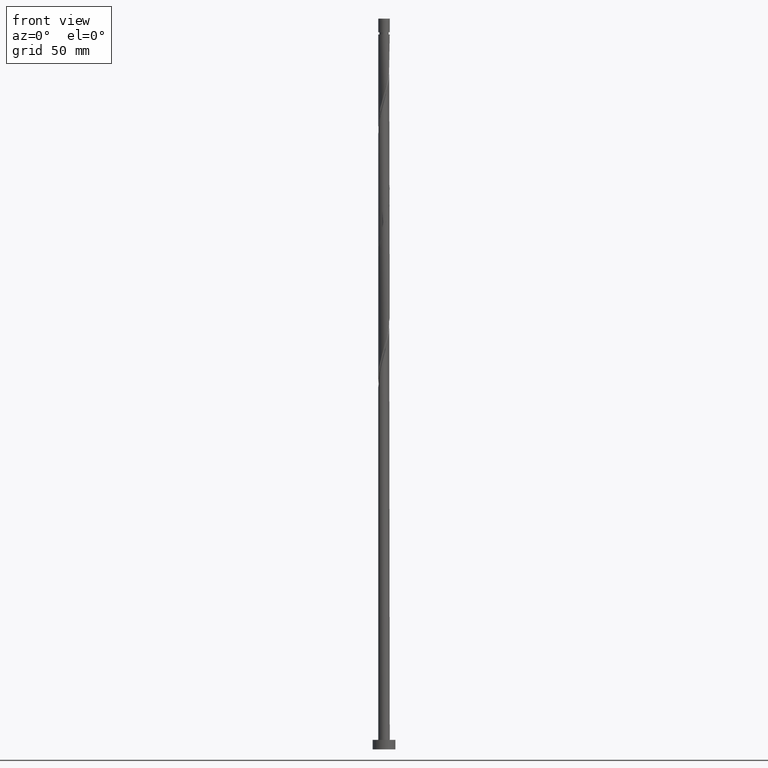
[diagram: clean part render]
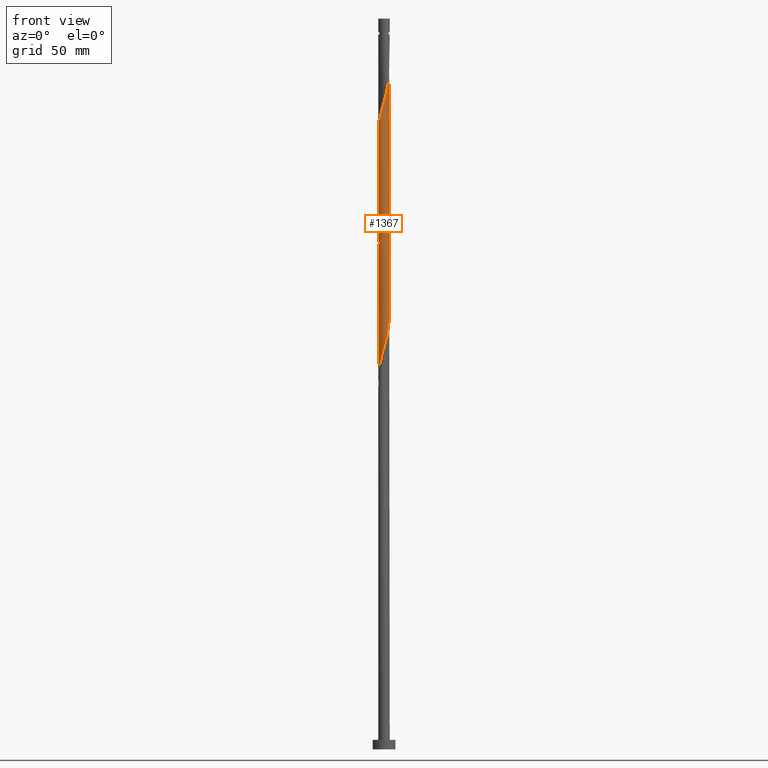
[diagram: same view with one face highlighted and labeled with its STEP entity id]
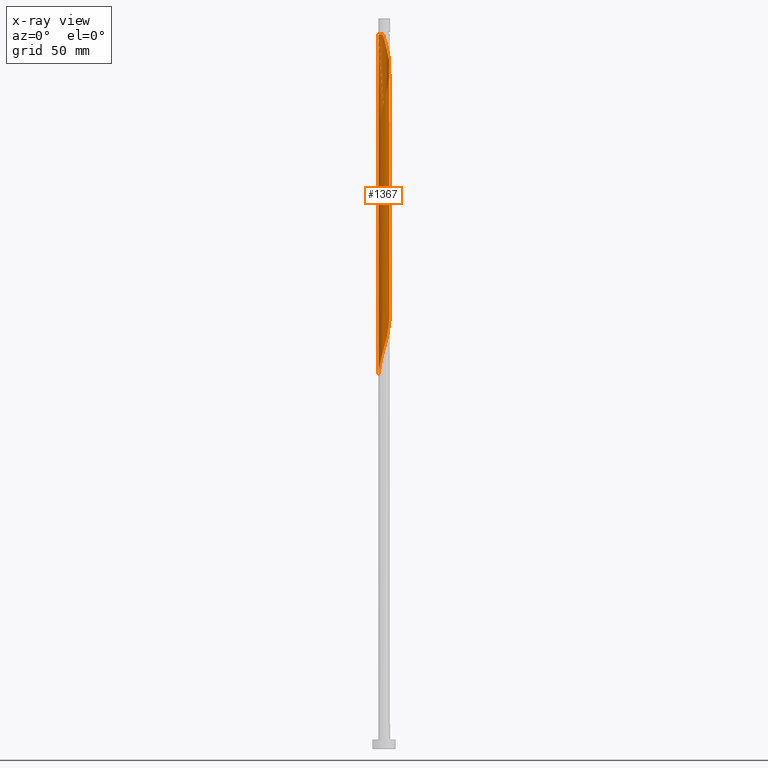
[diagram: x-ray of the same camera — body ghosted, the highlighted face saturated]
A machine part, front view. The second image highlights one B-rep face of the part: STEP entity #1367.
The next image is the same camera in x-ray: the body ghosted, the highlighted face saturated — about 0% of this face is hidden behind the body in this view.
In plain terms, the highlighted cylindrical surface (bore or boss wall) has radius 3 mm, axis along (-0, -0, -1).
Its self-contained STEP definition (entity closure, byte-faithful):
#3 = CARTESIAN_POINT ( 'NONE',  ( -2.584311715169900214, -1.523592123514561747, 200.3420127188769300 ) ) ;
#16 = CARTESIAN_POINT ( 'NONE',  ( -1.245111594254572074, 2.729413328510881254, 315.8975682744324445 ) ) ;
#18 = CARTESIAN_POINT ( 'NONE',  ( -0.3426132633519650694, -2.997004880578673980, 339.2309016077659862 ) ) ;
#27 = CARTESIAN_POINT ( 'NONE',  ( -0.9582386936374935882, -2.860279830445437987, 337.0086793855435872 ) ) ;
#37 = CARTESIAN_POINT ( 'NONE',  ( 1.531984494871656111, 2.598546826576328073, 368.1197904966547867 ) ) ;
#46 = CARTESIAN_POINT ( 'NONE',  ( 0.5969924622639741774, -2.940000000000003944, 342.5642349410992438 ) ) ;
#56 = ORIENTED_EDGE ( 'NONE', *, *, #761, .F. ) ;
#69 = CARTESIAN_POINT ( 'NONE',  ( -2.247618455994262465, 1.987010638188425382, 253.6753460522102728 ) ) ;
#72 = CARTESIAN_POINT ( 'NONE',  ( -2.247618455994262465, 1.987010638188425382, 320.3420127188770152 ) ) ;
#78 = CARTESIAN_POINT ( 'NONE',  ( -2.956194341916741575, -0.6002808636434362466, 325.8975682744326718 ) ) ;
#93 = CARTESIAN_POINT ( 'NONE',  ( -2.611625341554439039, 1.476283534877586456, 322.5642349410992438 ) ) ;
#99 =( BOUNDED_CURVE ( )  B_SPLINE_CURVE ( 2, ( #508, #656, #401, #530, #1422, #1082, #1564, #258, #521, #111, #1822, #514, #1242, #1089, #1687, #667, #1252, #934, #248, #1225, #1104, #1697, #220, #961, #1667, #365, #1520, #1674, #1410, #1551, #381, #800, #372, #1384, #944, #1830, #826, #101, #69, #1096, #547, #1271, #558, #306, #133, #884, #1584, #1124, #1746, #721, #156, #1432, #434, #443, #1013, #1716, #994, #1136, #1005, #1442, #1737, #1603, #1595, #1880, #1452, #288, #1471, #1869, #690, #120, #1858, #412, #711, #1166, #569, #146, #868, #279, #983, #268, #1573, #1302, #849, #701, #1756, #857, #3, #296, #1281, #1310, #1726, #452, #422 ),
 .UNSPECIFIED., .F., .T. ) 
 B_SPLINE_CURVE_WITH_KNOTS ( ( 3, 2, 2, 2, 2, 2, 2, 2, 2, 2, 2, 2, 2, 2, 2, 2, 2, 2, 2, 2, 2, 2, 2, 2, 2, 2, 2, 2, 2, 2, 2, 2, 2, 2, 2, 2, 2, 2, 2, 2, 2, 2, 2, 2, 2, 2, 3 ),
 ( 0.5545286012773116280, 0.5583333333333333481, 0.5666666666666666519, 0.5749999999999999556, 0.5833333333333333703, 0.5916666666666666741, 0.5999999999999999778, 0.6083333333333332815, 0.6166666666666666963, 0.6250000000000000000, 0.6333333333333333037, 0.6416666666666667185, 0.6500000000000000222, 0.6583333333333333259, 0.6666666666666666297, 0.6750000000000000444, 0.6833333333333333481, 0.6916666666666666519, 0.6999999999999999556, 0.7083333333333333703, 0.7166666666666666741, 0.7249999999999999778, 0.7333333333333332815, 0.7416666666666666963, 0.7500000000000000000, 0.7583333333333333037, 0.7666666666666667185, 0.7750000000000000222, 0.7833333333333333259, 0.7916666666666666297, 0.8000000000000000444, 0.8083333333333333481, 0.8166666666666666519, 0.8249999999999999556, 0.8333333333333333703, 0.8416666666666666741, 0.8499999999999999778, 0.8583333333333332815, 0.8666666666666666963, 0.8750000000000000000, 0.8833333333333333037, 0.8916666666666667185, 0.9000000000000000222, 0.9083333333333333259, 0.9166666666666666297, 0.9250000000000000444, 0.9295286012773115170 ),
 .UNSPECIFIED. ) 
 CURVE ( )  GEOMETRIC_REPRESENTATION_ITEM ( )  RATIONAL_B_SPLINE_CURVE ( ( 0.9066196499552441335, 0.9068171577856569687, 0.9090909090909558010, 0.9041108139712040748, 0.9090909090909558010, 0.9041108139712040748, 0.9090909090909558010, 0.9041108139712040748, 0.9090909090909558010, 0.9041108139712040748, 0.9090909090909558010, 0.9041108139712040748, 0.9090909090909558010, 0.9041108139712040748, 0.9090909090909558010, 0.9041108139712040748, 0.9090909090909558010, 0.9041108139712040748, 0.9090909090909558010, 0.9041108139712040748, 0.9090909090909558010, 0.9041108139712040748, 0.9090909090909558010, 0.9041108139712040748, 0.9090909090909558010, 0.9041108139712040748, 0.9090909090909558010, 0.9041108139712040748, 0.9090909090909558010, 0.9041108139712040748, 0.9090909090909558010, 0.9041108139712040748, 0.9090909090909558010, 0.9041108139712040748, 0.9090909090909558010, 0.9041108139712040748, 0.9090909090909558010, 0.9041108139712040748, 0.9090909090909558010, 0.9041108139712040748, 0.9090909090909558010, 0.9041108139712040748, 0.9090909090909558010, 0.9041108139712040748, 0.9090909090909558010, 0.9041108139712040748, 0.9090909090909558010, 0.9041108139712040748, 0.9090909090909558010, 0.9041108139712040748, 0.9090909090909558010, 0.9041108139712040748, 0.9090909090909558010, 0.9041108139712040748, 0.9090909090909558010, 0.9041108139712040748, 0.9090909090909558010, 0.9041108139712040748, 0.9090909090909558010, 0.9041108139712040748, 0.9090909090909558010, 0.9041108139712040748, 0.9090909090909558010, 0.9041108139712040748, 0.9090909090909558010, 0.9041108139712040748, 0.9090909090909558010, 0.9041108139712040748, 0.9090909090909558010, 0.9041108139712040748, 0.9090909090909558010, 0.9041108139712040748, 0.9090909090909558010, 0.9041108139712040748, 0.9090909090909558010, 0.9041108139712040748, 0.9090909090909558010, 0.9041108139712040748, 0.9090909090909558010, 0.9041108139712040748, 0.9090909090909558010, 0.9041108139712040748, 0.9090909090909558010, 0.9041108139712040748, 0.9090909090909558010, 0.9041108139712040748, 0.9090909090909558010, 0.9041108139712040748, 0.9090909090909558010, 0.9041108139712040748, 0.9090909090909558010, 0.9063845652765030181, 0.9066196499552441335 ) ) 
 REPRESENTATION_ITEM ( '' )  );
#101 = CARTESIAN_POINT ( 'NONE',  ( -2.456461689585820896, 1.750776419202127343, 254.7864571633214155 ) ) ;
#111 = CARTESIAN_POINT ( 'NONE',  ( 2.038775222402704923, -2.223244857174721645, 285.8975682744324445 ) ) ;
#120 = CARTESIAN_POINT ( 'NONE',  ( 2.038775222402704923, -2.223244857174721645, 219.2309016077658157 ) ) ;
#127 = VECTOR ( 'NONE', #734, 1000.000000000000000 ) ;
#133 = CARTESIAN_POINT ( 'NONE',  ( -0.6504259784947274969, 2.928642355512051765, 247.0086793855436440 ) ) ;
#135 = CARTESIAN_POINT ( 'NONE',  ( -2.456461689585825781, -1.750776419202128231, 330.3420127188767879 ) ) ;
#146 = CARTESIAN_POINT ( 'NONE',  ( 0.3426132633519635151, -2.997004880578670871, 212.5642349410992153 ) ) ;
#148 = CARTESIAN_POINT ( 'NONE',  ( 0.9059989139450651541, 2.877253563794370805, 308.1197904966546730 ) ) ;
#156 = CARTESIAN_POINT ( 'NONE',  ( 1.195207115623887040, 2.751632233922627790, 240.3420127188769868 ) ) ;
#158 = CARTESIAN_POINT ( 'NONE',  ( 1.195207115623887040, 2.751632233922627790, 307.0086793855435872 ) ) ;
#160 = CARTESIAN_POINT ( 'NONE',  ( 2.980586974261068001, -0.3407363920471055962, 355.8975682744325013 ) ) ;
#166 = CARTESIAN_POINT ( 'NONE',  ( 2.211065689225170772, 2.027606598413810968, 302.5642349410991869 ) ) ;
#179 = CARTESIAN_POINT ( 'NONE',  ( -3.000000000000004885, -4.484524626199453839E-16, 323.7721250309111269 ) ) ;
#198 = CARTESIAN_POINT ( 'NONE',  ( 1.785379858637182293, 2.410895841875525747, 367.0086793855436440 ) ) ;
#199 = VERTEX_POINT ( 'NONE', #769 ) ;
#208 = VERTEX_POINT ( 'NONE', #179 ) ;
#211 = CARTESIAN_POINT ( 'NONE',  ( -3.000000000000004885, -4.484524626199453839E-16, 323.7721250309111269 ) ) ;
#220 = CARTESIAN_POINT ( 'NONE',  ( -1.741185482790978512, -2.443004935426441371, 271.4531238299881011 ) ) ;
#240 = VERTEX_POINT ( 'NONE', #1200 ) ;
#248 = CARTESIAN_POINT ( 'NONE',  ( -0.5969924622639745104, -2.940000000000000835, 275.8975682744326150 ) ) ;
#252 = AXIS2_PLACEMENT_3D ( 'NONE', #1049, #467, #1625 ) ;
#258 = CARTESIAN_POINT ( 'NONE',  ( 2.456461689585819563, -1.750776419202129119, 288.1197904966547867 ) ) ;
#268 = CARTESIAN_POINT ( 'NONE',  ( -0.9059989139450635998, -2.877253563794371694, 208.1197904966547298 ) ) ;
#279 = CARTESIAN_POINT ( 'NONE',  ( -0.2879860105828864203, -3.002746436205628644, 210.3420127188769868 ) ) ;
#288 = CARTESIAN_POINT ( 'NONE',  ( 2.766788993523057183, -1.201790650553047346, 223.6753460522103012 ) ) ;
#290 = CARTESIAN_POINT ( 'NONE',  ( 1.741185482790980288, 2.443004935426440483, 304.7864571633214155 ) ) ;
#293 = CARTESIAN_POINT ( 'NONE',  ( -2.766788993523061624, -1.201790650553046236, 328.1197904966547298 ) ) ;
#296 = CARTESIAN_POINT ( 'NONE',  ( -2.744447700168706650, -1.251970017003501745, 199.2309016077658725 ) ) ;
#302 = DIRECTION ( 'NONE',  ( -0.000000000000000000, -0.000000000000000000, -1.000000000000000000 ) ) ;
#306 = CARTESIAN_POINT ( 'NONE',  ( -0.9582386936374910347, 2.860279830445433991, 248.1197904966547583 ) ) ;
#311 = CARTESIAN_POINT ( 'NONE',  ( 0.3426132633519654580, 2.997004880578673980, 372.5642349410992438 ) ) ;
#319 = CARTESIAN_POINT ( 'NONE',  ( 2.744447700168710202, -1.251970017003503743, 352.5642349410993006 ) ) ;
#337 = CARTESIAN_POINT ( 'NONE',  ( 2.247618455994266906, 1.987010638188424938, 364.7864571633214723 ) ) ;
#340 = VERTEX_POINT ( 'NONE', #358 ) ;
#358 = CARTESIAN_POINT ( 'NONE',  ( -2.999999999999966693, 0.000000000000000000, 375.8975682744325582 ) ) ;
#365 = CARTESIAN_POINT ( 'NONE',  ( -2.424175730171093335, -1.795214230025623303, 268.1197904966547867 ) ) ;
#372 = CARTESIAN_POINT ( 'NONE',  ( -2.986297077045549919, 0.2864083930844389392, 260.3420127188770152 ) ) ;
#381 = CARTESIAN_POINT ( 'NONE',  ( -2.980586974261065336, -0.3407363920471042640, 262.5642349410991301 ) ) ;
#391 = CARTESIAN_POINT ( 'NONE',  ( 3.000000000000000444, 3.673940397442060361E-16, 384.2300000000000182 ) ) ;
#393 = VERTEX_POINT ( 'NONE', #1361 ) ;
#401 = CARTESIAN_POINT ( 'NONE',  ( 2.986297077045549475, -0.2864083930844399384, 293.6753460522103865 ) ) ;
#412 = CARTESIAN_POINT ( 'NONE',  ( 1.531984494871651226, -2.598546826576326296, 217.0086793855436440 ) ) ;
#422 = CARTESIAN_POINT ( 'NONE',  ( -3.000000000000001332, 3.991226917317535029E-15, 194.6896781846206466 ) ) ;
#423 = CARTESIAN_POINT ( 'NONE',  ( 3.000000000000000000, 3.198960900022293263E-15, 294.6896781846206750 ) ) ;
#427 = EDGE_CURVE ( 'NONE', #208, #199, #1753, .T. ) ;
#434 = CARTESIAN_POINT ( 'NONE',  ( 1.741185482790980288, 2.443004935426440483, 238.1197904966547583 ) ) ;
#436 = CYLINDRICAL_SURFACE ( 'NONE', #973, 3.000000000000000444 ) ;
#443 = CARTESIAN_POINT ( 'NONE',  ( 1.997955648279248431, 2.259998966801997522, 237.0086793855436440 ) ) ;
#445 = CARTESIAN_POINT ( 'NONE',  ( -0.02731362638453935232, 2.999875658392149091, 311.4531238299882148 ) ) ;
#447 = CARTESIAN_POINT ( 'NONE',  ( -0.6504259784947296064, -2.928642355512055762, 338.1197904966547298 ) ) ;
#452 = CARTESIAN_POINT ( 'NONE',  ( -3.000000000000000888, -0.1709212123392955252, 195.2952694940051686 ) ) ;
#454 = FACE_OUTER_BOUND ( 'NONE', #1016, .T. ) ;
#456 = CARTESIAN_POINT ( 'NONE',  ( 1.997955648279248431, -2.259998966802002851, 348.1197904966547298 ) ) ;
#467 = DIRECTION ( 'NONE',  ( -0.000000000000000000, -0.000000000000000000, -1.000000000000000000 ) ) ;
#478 = CARTESIAN_POINT ( 'NONE',  ( 0.2879860105828843109, -3.002746436205632197, 341.4531238299881011 ) ) ;
#486 = CARTESIAN_POINT ( 'NONE',  ( -2.038775222402708032, -2.223244857174723865, 332.5642349410991869 ) ) ;
#508 = CARTESIAN_POINT ( 'NONE',  ( 2.999999999999999556, 3.198960900022293263E-15, 294.6896781846206750 ) ) ;
#514 = CARTESIAN_POINT ( 'NONE',  ( 1.531984494871651226, -2.598546826576326296, 283.6753460522103865 ) ) ;
#521 = CARTESIAN_POINT ( 'NONE',  ( 2.247618455994262465, -1.987010638188425382, 287.0086793855436440 ) ) ;
#530 = CARTESIAN_POINT ( 'NONE',  ( 2.956194341916738466, -0.6002808636434362466, 292.5642349410991869 ) ) ;
#547 = CARTESIAN_POINT ( 'NONE',  ( -1.785379858637178518, 2.410895841875523082, 251.4531238299880727 ) ) ;
#558 = CARTESIAN_POINT ( 'NONE',  ( -1.245111594254572074, 2.729413328510881254, 249.2309016077658441 ) ) ;
#562 = CARTESIAN_POINT ( 'NONE',  ( 2.424175730171094667, 1.795214230025621971, 301.4531238299881579 ) ) ;
#563 = ORIENTED_EDGE ( 'NONE', *, *, #427, .T. ) ;
#569 = CARTESIAN_POINT ( 'NONE',  ( 0.6504259784947262757, -2.928642355512052209, 213.6753460522103580 ) ) ;
#572 = VERTEX_POINT ( 'NONE', #423 ) ;
#590 = CARTESIAN_POINT ( 'NONE',  ( 2.611625341554443036, 1.476283534877587345, 362.5642349410992438 ) ) ;
#598 = CARTESIAN_POINT ( 'NONE',  ( 2.424175730171095111, -1.795214230025626634, 350.3420127188770152 ) ) ;
#607 = CARTESIAN_POINT ( 'NONE',  ( 2.944774136347771520, -0.6540087066196536014, 354.7864571633213586 ) ) ;
#636 = CIRCLE ( 'NONE', #252, 2.999999999999966693 ) ;
#646 = LINE ( 'NONE', #391, #795 ) ;
#656 = CARTESIAN_POINT ( 'NONE',  ( 3.000000000000000444, -0.1435319978602565827, 294.1811296590566940 ) ) ;
#660 = CARTESIAN_POINT ( 'NONE',  ( -2.986297077045549919, 0.2864083930844389392, 327.0086793855436440 ) ) ;
#667 = CARTESIAN_POINT ( 'NONE',  ( 0.3426132633519635151, -2.997004880578670871, 279.2309016077658157 ) ) ;
#678 = CARTESIAN_POINT ( 'NONE',  ( -2.861491667719902043, -0.9010357570982412412, 327.0086793855437008 ) ) ;
#680 = DIRECTION ( 'NONE',  ( -0.000000000000000000, -0.000000000000000000, -1.000000000000000000 ) ) ;
#690 = CARTESIAN_POINT ( 'NONE',  ( 2.247618455994262465, -1.987010638188425382, 220.3420127188769584 ) ) ;
#701 = CARTESIAN_POINT ( 'NONE',  ( -1.997955648279247765, -2.259998966801997966, 203.6753460522103296 ) ) ;
#711 = CARTESIAN_POINT ( 'NONE',  ( 1.245111594254571630, -2.729413328510881254, 215.8975682744325582 ) ) ;
#713 = CARTESIAN_POINT ( 'NONE',  ( -3.000000000000000444, 0.000000000000000000, 384.2300000000000182 ) ) ;
#721 = CARTESIAN_POINT ( 'NONE',  ( 0.9059989139450651541, 2.877253563794370805, 241.4531238299880727 ) ) ;
#734 = DIRECTION ( 'NONE',  ( -0.000000000000000000, -0.000000000000000000, -1.000000000000000000 ) ) ;
#735 = CARTESIAN_POINT ( 'NONE',  ( 2.038775222402708476, 2.223244857174723421, 365.8975682744325582 ) ) ;
#744 = CARTESIAN_POINT ( 'NONE',  ( 2.980586974261065336, 0.3407363920471038754, 295.8975682744326150 ) ) ;
#761 = EDGE_CURVE ( 'NONE', #208, #1495, #1279, .T. ) ;
#767 = CARTESIAN_POINT ( 'NONE',  ( 3.016399812174364925, -0.02746407747456069276, 357.0086793855437008 ) ) ;
#769 = CARTESIAN_POINT ( 'NONE',  ( -3.000000000000001332, 3.991226917317535029E-15, 194.6896781846206750 ) ) ;
#777 = CARTESIAN_POINT ( 'NONE',  ( 1.741185482790978512, -2.443004935426445812, 347.0086793855436440 ) ) ;
#784 = EDGE_CURVE ( 'NONE', #340, #1495, #636, .T. ) ;
#795 = VECTOR ( 'NONE', #680, 1000.000000000000000 ) ;
#800 = CARTESIAN_POINT ( 'NONE',  ( -3.016399812174360484, -0.02746407747455818435, 261.4531238299881011 ) ) ;
#826 = CARTESIAN_POINT ( 'NONE',  ( -2.611625341554439039, 1.476283534877586456, 255.8975682744325582 ) ) ;
#834 =( BOUNDED_CURVE ( )  B_SPLINE_CURVE ( 2, ( #1394, #1679, #660, #937, #1387, #1545, #93, #1256, #72, #1092, #946, #1739, #16, #1294, #851, #1463, #445, #1758, #1140, #148, #158, #1872, #290, #1473, #166, #562, #860, #1728, #870, #1614, #744, #1883, #1323 ),
 .UNSPECIFIED., .F., .T. ) 
 B_SPLINE_CURVE_WITH_KNOTS ( ( 3, 2, 2, 2, 2, 2, 2, 2, 2, 2, 2, 2, 2, 2, 2, 2, 3 ),
 ( 0.4295286012773115725, 0.4333333333333333481, 0.4416666666666666519, 0.4500000000000000111, 0.4583333333333333148, 0.4666666666666666741, 0.4749999999999999778, 0.4833333333333333370, 0.4916666666666666408, 0.5000000000000000000, 0.5083333333333333037, 0.5166666666666667185, 0.5250000000000000222, 0.5333333333333333259, 0.5416666666666666297, 0.5500000000000000444, 0.5545286012773116280 ),
 .UNSPECIFIED. ) 
 CURVE ( )  GEOMETRIC_REPRESENTATION_ITEM ( )  RATIONAL_B_SPLINE_CURVE ( ( 0.9066196499552441335, 0.9068171577856569687, 0.9090909090909558010, 0.9041108139712040748, 0.9090909090909558010, 0.9041108139712040748, 0.9090909090909558010, 0.9041108139712040748, 0.9090909090909558010, 0.9041108139712040748, 0.9090909090909558010, 0.9041108139712040748, 0.9090909090909558010, 0.9041108139712040748, 0.9090909090909558010, 0.9041108139712040748, 0.9090909090909558010, 0.9041108139712040748, 0.9090909090909558010, 0.9041108139712040748, 0.9090909090909558010, 0.9041108139712040748, 0.9090909090909558010, 0.9041108139712040748, 0.9090909090909558010, 0.9041108139712040748, 0.9090909090909558010, 0.9041108139712040748, 0.9090909090909558010, 0.9041108139712040748, 0.9090909090909558010, 0.9063845652765029071, 0.9066196499552441335 ) ) 
 REPRESENTATION_ITEM ( '' )  );
#849 = CARTESIAN_POINT ( 'NONE',  ( -1.741185482790978512, -2.443004935426441371, 204.7864571633214155 ) ) ;
#851 = CARTESIAN_POINT ( 'NONE',  ( -0.6504259784947274969, 2.928642355512051765, 313.6753460522103865 ) ) ;
#857 = CARTESIAN_POINT ( 'NONE',  ( -2.424175730171093335, -1.795214230025623303, 201.4531238299881011 ) ) ;
#860 = CARTESIAN_POINT ( 'NONE',  ( 2.584311715169900658, 1.523592123514561303, 300.3420127188770721 ) ) ;
#868 = CARTESIAN_POINT ( 'NONE',  ( 0.02731362638453859598, -2.999875658392148647, 211.4531238299880442 ) ) ;
#870 = CARTESIAN_POINT ( 'NONE',  ( 2.844610918258237753, 0.9529893618115736764, 298.1197904966547298 ) ) ;
#877 = LINE ( 'NONE', #713, #127 ) ;
#878 = CARTESIAN_POINT ( 'NONE',  ( -1.785379858637181627, -2.410895841875526635, 333.6753460522103296 ) ) ;
#884 = CARTESIAN_POINT ( 'NONE',  ( -0.3426132633519637927, 2.997004880578670871, 245.8975682744325297 ) ) ;
#890 = CARTESIAN_POINT ( 'NONE',  ( -0.2879860105828995209, 3.002746436205632641, 374.7864571633214155 ) ) ;
#899 = CARTESIAN_POINT ( 'NONE',  ( 0.9582386936374938102, 2.860279830445437987, 370.3420127188770721 ) ) ;
#921 = CARTESIAN_POINT ( 'NONE',  ( -0.5969924622640361278, 2.940000000000875247, 375.8975682744324445 ) ) ;
#934 = CARTESIAN_POINT ( 'NONE',  ( -0.2879860105828864203, -3.002746436205628644, 277.0086793855436440 ) ) ;
#937 = CARTESIAN_POINT ( 'NONE',  ( -2.956194341916738466, 0.6002808636434361356, 325.8975682744324445 ) ) ;
#944 = CARTESIAN_POINT ( 'NONE',  ( -2.861491667719898047, 0.9010357570982414632, 258.1197904966547298 ) ) ;
#946 = CARTESIAN_POINT ( 'NONE',  ( -1.785379858637178518, 2.410895841875523082, 318.1197904966547867 ) ) ;
#961 = CARTESIAN_POINT ( 'NONE',  ( -1.997955648279247765, -2.259998966801997966, 270.3420127188769584 ) ) ;
#968 = ORIENTED_EDGE ( 'NONE', *, *, #1740, .F. ) ;
#973 = AXIS2_PLACEMENT_3D ( 'NONE', #987, #1151, #1434 ) ;
#983 = CARTESIAN_POINT ( 'NONE',  ( -0.5969924622639745104, -2.940000000000000835, 209.2309016077659010 ) ) ;
#987 = CARTESIAN_POINT ( 'NONE',  ( 0.000000000000000000, 0.000000000000000000, 384.2300000000000182 ) ) ;
#994 = CARTESIAN_POINT ( 'NONE',  ( 2.584311715169900658, 1.523592123514561303, 233.6753460522103580 ) ) ;
#1005 = CARTESIAN_POINT ( 'NONE',  ( 2.844610918258237753, 0.9529893618115736764, 231.4531238299880442 ) ) ;
#1013 = CARTESIAN_POINT ( 'NONE',  ( 2.211065689225170772, 2.027606598413810968, 235.8975682744325297 ) ) ;
#1016 = EDGE_LOOP ( 'NONE', ( #1861, #1110, #56, #563, #1677, #968, #1378, #1671 ) ) ;
#1017 = CARTESIAN_POINT ( 'NONE',  ( 0.9059989139450621565, -2.877253563794376578, 343.6753460522102728 ) ) ;
#1020 = CARTESIAN_POINT ( 'NONE',  ( -3.000000000000000444, 0.000000000000000000, 384.2300000000000182 ) ) ;
#1028 = CARTESIAN_POINT ( 'NONE',  ( 2.211065689225172104, -2.027606598413813632, 349.2309016077658157 ) ) ;
#1039 = CARTESIAN_POINT ( 'NONE',  ( 1.484415317302709703, -2.626010904050888772, 345.8975682744326150 ) ) ;
#1049 = CARTESIAN_POINT ( 'NONE',  ( 0.000000000000000000, 0.000000000000000000, 375.8975682744325582 ) ) ;
#1059 = CARTESIAN_POINT ( 'NONE',  ( -0.02731362638454099684, -2.999875658392152644, 340.3420127188770152 ) ) ;
#1082 = CARTESIAN_POINT ( 'NONE',  ( 2.766788993523057183, -1.201790650553047346, 290.3420127188770152 ) ) ;
#1089 = CARTESIAN_POINT ( 'NONE',  ( 0.9582386936374903685, -2.860279830445433991, 281.4531238299880442 ) ) ;
#1092 = CARTESIAN_POINT ( 'NONE',  ( -2.038775222402705367, 2.223244857174720757, 319.2309016077657589 ) ) ;
#1096 = CARTESIAN_POINT ( 'NONE',  ( -2.038775222402705367, 2.223244857174720757, 252.5642349410991869 ) ) ;
#1104 = CARTESIAN_POINT ( 'NONE',  ( -1.195207115623886596, -2.751632233922628679, 273.6753460522103296 ) ) ;
#1110 = ORIENTED_EDGE ( 'NONE', *, *, #784, .T. ) ;
#1124 = CARTESIAN_POINT ( 'NONE',  ( 0.2879860105828850325, 3.002746436205627756, 243.6753460522103580 ) ) ;
#1136 = CARTESIAN_POINT ( 'NONE',  ( 2.744447700168707094, 1.251970017003501079, 232.5642349410992153 ) ) ;
#1140 = CARTESIAN_POINT ( 'NONE',  ( 0.5969924622639746215, 2.940000000000000835, 309.2309016077659294 ) ) ;
#1151 = DIRECTION ( 'NONE',  ( -0.000000000000000000, -0.000000000000000000, -1.000000000000000000 ) ) ;
#1166 = CARTESIAN_POINT ( 'NONE',  ( 0.9582386936374903685, -2.860279830445433991, 214.7864571633213870 ) ) ;
#1169 = CARTESIAN_POINT ( 'NONE',  ( 2.456461689585825781, 1.750776419202127565, 363.6753460522103296 ) ) ;
#1178 = CARTESIAN_POINT ( 'NONE',  ( 2.861491667719902487, 0.9010357570982404640, 360.3420127188770721 ) ) ;
#1188 = CARTESIAN_POINT ( 'NONE',  ( 2.956194341916741575, 0.6002808636434358025, 359.2309016077659294 ) ) ;
#1198 = CARTESIAN_POINT ( 'NONE',  ( -2.247618455994266018, -1.987010638188426048, 331.4531238299880442 ) ) ;
#1200 = CARTESIAN_POINT ( 'NONE',  ( 3.000000000000000444, 3.673940397442060361E-16, 375.8975682744325582 ) ) ;
#1207 = VECTOR ( 'NONE', #302, 1000.000000000000000 ) ;
#1223 = CARTESIAN_POINT ( 'NONE',  ( -3.000000000000003997, -0.1435319978602498103, 324.2806735564751648 ) ) ;
#1225 = CARTESIAN_POINT ( 'NONE',  ( -0.9059989139450635998, -2.877253563794371694, 274.7864571633215292 ) ) ;
#1242 = CARTESIAN_POINT ( 'NONE',  ( 1.245111594254571630, -2.729413328510881254, 282.5642349410991869 ) ) ;
#1252 = CARTESIAN_POINT ( 'NONE',  ( 0.02731362638453859598, -2.999875658392148647, 278.1197904966547298 ) ) ;
#1253 = EDGE_CURVE ( 'NONE', #393, #572, #834, .T. ) ;
#1256 = CARTESIAN_POINT ( 'NONE',  ( -2.456461689585820896, 1.750776419202127343, 321.4531238299881011 ) ) ;
#1271 = CARTESIAN_POINT ( 'NONE',  ( -1.531984494871652336, 2.598546826576326296, 250.3420127188770152 ) ) ;
#1279 =( BOUNDED_CURVE ( )  B_SPLINE_CURVE ( 2, ( #211, #1223, #1529, #78, #678, #293, #1705, #135, #1198, #486, #878, #1324, #1465, #27, #447, #18, #1059, #478, #46, #1017, #1642, #1039, #777, #456, #1028, #598, #1760, #319, #1483, #607, #160, #767, #1502, #1188, #1178, #1615, #590, #1169, #337, #735, #198, #37, #1338, #899, #1315, #311, #1788, #890, #1769 ),
 .UNSPECIFIED., .F., .T. ) 
 B_SPLINE_CURVE_WITH_KNOTS ( ( 3, 2, 2, 2, 2, 2, 2, 2, 2, 2, 2, 2, 2, 2, 2, 2, 2, 2, 2, 2, 2, 2, 2, 2, 3 ),
 ( 0.5545286012773115170, 0.5583333333333333481, 0.5666666666666666519, 0.5749999999999999556, 0.5833333333333333703, 0.5916666666666667851, 0.6000000000000000888, 0.6083333333333335036, 0.6166666666666668073, 0.6250000000000001110, 0.6333333333333335258, 0.6416666666666668295, 0.6500000000000002442, 0.6583333333333335480, 0.6666666666666669627, 0.6750000000000002665, 0.6833333333333336812, 0.6916666666666669849, 0.7000000000000002887, 0.7083333333333335924, 0.7166666666666670071, 0.7250000000000003109, 0.7333333333333338366, 0.7416666666666671404, 0.7500000000000004441 ),
 .UNSPECIFIED. ) 
 CURVE ( )  GEOMETRIC_REPRESENTATION_ITEM ( )  RATIONAL_B_SPLINE_CURVE ( ( 0.9066196499552487964, 0.9068171577856616317, 0.9090909090909605750, 0.9041108139712088487, 0.9090909090909605750, 0.9041108139712088487, 0.9090909090909605750, 0.9041108139712088487, 0.9090909090909605750, 0.9041108139712088487, 0.9090909090909605750, 0.9041108139712088487, 0.9090909090909605750, 0.9041108139712088487, 0.9090909090909605750, 0.9041108139712088487, 0.9090909090909605750, 0.9041108139712088487, 0.9090909090909605750, 0.9041108139712088487, 0.9090909090909605750, 0.9041108139712088487, 0.9090909090909605750, 0.9041108139712088487, 0.9090909090909605750, 0.9041108139712088487, 0.9090909090909605750, 0.9041108139712088487, 0.9090909090909605750, 0.9041108139712088487, 0.9090909090909605750, 0.9041108139712088487, 0.9090909090909605750, 0.9041108139712088487, 0.9090909090909605750, 0.9041108139712088487, 0.9090909090909605750, 0.9041108139712088487, 0.9090909090909605750, 0.9041108139712088487, 0.9090909090909605750, 0.9041108139712088487, 0.9090909090909605750, 0.9041108139712088487, 0.9090909090909605750, 0.9041108139712088487, 0.9090909090909605750, 0.9041108139712086267, 0.9090909090909607970 ) ) 
 REPRESENTATION_ITEM ( '' )  );
#1281 = CARTESIAN_POINT ( 'NONE',  ( -2.844610918258236865, -0.9529893618115753418, 198.1197904966548151 ) ) ;
#1294 = CARTESIAN_POINT ( 'NONE',  ( -0.9582386936374910347, 2.860279830445433991, 314.7864571633213586 ) ) ;
#1302 = CARTESIAN_POINT ( 'NONE',  ( -1.484415317302708814, -2.626010904050884776, 205.8975682744325297 ) ) ;
#1310 = CARTESIAN_POINT ( 'NONE',  ( -2.944774136347767524, -0.6540087066196497156, 197.0086793855436724 ) ) ;
#1315 = CARTESIAN_POINT ( 'NONE',  ( 0.6504259784947311607, 2.928642355512054873, 371.4531238299881579 ) ) ;
#1323 = CARTESIAN_POINT ( 'NONE',  ( 2.999999999999999556, 3.198960900022293263E-15, 294.6896781846206750 ) ) ;
#1324 = CARTESIAN_POINT ( 'NONE',  ( -1.531984494871654556, -2.598546826576328961, 334.7864571633215292 ) ) ;
#1338 = CARTESIAN_POINT ( 'NONE',  ( 1.245111594254574294, 2.729413328510884362, 369.2309016077660431 ) ) ;
#1357 = EDGE_CURVE ( 'NONE', #340, #393, #877, .T. ) ;
#1361 = CARTESIAN_POINT ( 'NONE',  ( -3.000000000000000888, 1.719067773376466032E-15, 328.0230115179540462 ) ) ;
#1367 = ADVANCED_FACE ( 'NONE', ( #454 ), #436, .T. ) ;
#1378 = ORIENTED_EDGE ( 'NONE', *, *, #1740, .T. ) ;
#1384 = CARTESIAN_POINT ( 'NONE',  ( -2.956194341916738466, 0.6002808636434361356, 259.2309016077658725 ) ) ;
#1387 = CARTESIAN_POINT ( 'NONE',  ( -2.861491667719898047, 0.9010357570982414632, 324.7864571633213586 ) ) ;
#1394 = CARTESIAN_POINT ( 'NONE',  ( -3.000000000000000888, 1.719067773376466032E-15, 328.0230115179540462 ) ) ;
#1410 = CARTESIAN_POINT ( 'NONE',  ( -2.844610918258236865, -0.9529893618115753418, 264.7864571633214155 ) ) ;
#1422 = CARTESIAN_POINT ( 'NONE',  ( 2.861491667719897602, -0.9010357570982432396, 291.4531238299881011 ) ) ;
#1432 = CARTESIAN_POINT ( 'NONE',  ( 1.484415317302709258, 2.626010904050884331, 239.2309016077659010 ) ) ;
#1434 = DIRECTION ( 'NONE',  ( -1.000000000000000000, 0.000000000000000000, 0.000000000000000000 ) ) ;
#1442 = CARTESIAN_POINT ( 'NONE',  ( 2.944774136347767524, 0.6540087066196487164, 230.3420127188769868 ) ) ;
#1452 = CARTESIAN_POINT ( 'NONE',  ( 2.861491667719897602, -0.9010357570982432396, 224.7864571633214439 ) ) ;
#1463 = CARTESIAN_POINT ( 'NONE',  ( -0.3426132633519637927, 2.997004880578670871, 312.5642349410990164 ) ) ;
#1465 = CARTESIAN_POINT ( 'NONE',  ( -1.245111594254573850, -2.729413328510883474, 335.8975682744326150 ) ) ;
#1471 = CARTESIAN_POINT ( 'NONE',  ( 2.611625341554439039, -1.476283534877586900, 222.5642349410992153 ) ) ;
#1473 = CARTESIAN_POINT ( 'NONE',  ( 1.997955648279248431, 2.259998966801997522, 303.6753460522104433 ) ) ;
#1483 = CARTESIAN_POINT ( 'NONE',  ( 2.844610918258240417, -0.9529893618115786724, 353.6753460522104433 ) ) ;
#1495 = VERTEX_POINT ( 'NONE', #921 ) ;
#1502 = CARTESIAN_POINT ( 'NONE',  ( 2.986297077045553916, 0.2864083930844362191, 358.1197904966547867 ) ) ;
#1520 = CARTESIAN_POINT ( 'NONE',  ( -2.584311715169900214, -1.523592123514561747, 267.0086793855437008 ) ) ;
#1529 = CARTESIAN_POINT ( 'NONE',  ( -2.986297077045553472, -0.2864083930844378845, 324.7864571633214155 ) ) ;
#1545 = CARTESIAN_POINT ( 'NONE',  ( -2.766788993523058071, 1.201790650553046014, 323.6753460522103296 ) ) ;
#1551 = CARTESIAN_POINT ( 'NONE',  ( -2.944774136347767524, -0.6540087066196497156, 263.6753460522102728 ) ) ;
#1564 = CARTESIAN_POINT ( 'NONE',  ( 2.611625341554439039, -1.476283534877586900, 289.2309016077658157 ) ) ;
#1573 = CARTESIAN_POINT ( 'NONE',  ( -1.195207115623886596, -2.751632233922628679, 207.0086793855436156 ) ) ;
#1584 = CARTESIAN_POINT ( 'NONE',  ( -0.02731362638453935232, 2.999875658392149091, 244.7864571633214155 ) ) ;
#1595 = CARTESIAN_POINT ( 'NONE',  ( 2.986297077045549475, -0.2864083930844399384, 227.0086793855436440 ) ) ;
#1603 = CARTESIAN_POINT ( 'NONE',  ( 3.016399812174360484, 0.02746407747455648085, 228.1197904966547014 ) ) ;
#1614 = CARTESIAN_POINT ( 'NONE',  ( 2.944774136347767524, 0.6540087066196487164, 297.0086793855436440 ) ) ;
#1615 = CARTESIAN_POINT ( 'NONE',  ( 2.766788993523062512, 1.201790650553044904, 361.4531238299882148 ) ) ;
#1625 = DIRECTION ( 'NONE',  ( -1.000000000000000000, 0.000000000000000000, 0.000000000000000000 ) ) ;
#1642 = CARTESIAN_POINT ( 'NONE',  ( 1.195207115623885930, -2.751632233922632675, 344.7864571633215292 ) ) ;
#1667 = CARTESIAN_POINT ( 'NONE',  ( -2.211065689225170328, -2.027606598413810968, 269.2309016077659294 ) ) ;
#1671 = ORIENTED_EDGE ( 'NONE', *, *, #1253, .F. ) ;
#1674 = CARTESIAN_POINT ( 'NONE',  ( -2.744447700168706650, -1.251970017003501745, 265.8975682744325582 ) ) ;
#1677 = ORIENTED_EDGE ( 'NONE', *, *, #1854, .F. ) ;
#1679 = CARTESIAN_POINT ( 'NONE',  ( -3.000000000000000444, 0.1435319978602541957, 327.5144629923899515 ) ) ;
#1687 = CARTESIAN_POINT ( 'NONE',  ( 0.6504259784947262757, -2.928642355512052209, 280.3420127188770152 ) ) ;
#1697 = CARTESIAN_POINT ( 'NONE',  ( -1.484415317302708814, -2.626010904050884776, 272.5642349410991869 ) ) ;
#1705 = CARTESIAN_POINT ( 'NONE',  ( -2.611625341554443036, -1.476283534877587567, 329.2309016077659294 ) ) ;
#1716 = CARTESIAN_POINT ( 'NONE',  ( 2.424175730171094667, 1.795214230025621971, 234.7864571633213870 ) ) ;
#1726 = CARTESIAN_POINT ( 'NONE',  ( -2.980586974261065336, -0.3407363920471042640, 195.8975682744325297 ) ) ;
#1728 = CARTESIAN_POINT ( 'NONE',  ( 2.744447700168707094, 1.251970017003501079, 299.2309016077658157 ) ) ;
#1737 = CARTESIAN_POINT ( 'NONE',  ( 2.980586974261065336, 0.3407363920471038754, 229.2309016077658441 ) ) ;
#1739 = CARTESIAN_POINT ( 'NONE',  ( -1.531984494871652336, 2.598546826576326296, 317.0086793855437008 ) ) ;
#1740 = EDGE_CURVE ( 'NONE', #240, #572, #646, .T. ) ;
#1746 = CARTESIAN_POINT ( 'NONE',  ( 0.5969924622639746215, 2.940000000000000835, 242.5642349410991585 ) ) ;
#1753 = LINE ( 'NONE', #1020, #1207 ) ;
#1756 = CARTESIAN_POINT ( 'NONE',  ( -2.211065689225170328, -2.027606598413810968, 202.5642349410992438 ) ) ;
#1758 = CARTESIAN_POINT ( 'NONE',  ( 0.2879860105828850325, 3.002746436205627756, 310.3420127188770152 ) ) ;
#1760 = CARTESIAN_POINT ( 'NONE',  ( 2.584311715169901991, -1.523592123514565744, 351.4531238299881579 ) ) ;
#1769 = CARTESIAN_POINT ( 'NONE',  ( -0.5969924622640362388, 2.940000000000875247, 375.8975682744324445 ) ) ;
#1788 = CARTESIAN_POINT ( 'NONE',  ( 0.02731362638454142705, 2.999875658392153088, 373.6753460522103296 ) ) ;
#1822 = CARTESIAN_POINT ( 'NONE',  ( 1.785379858637178074, -2.410895841875524859, 284.7864571633213586 ) ) ;
#1830 = CARTESIAN_POINT ( 'NONE',  ( -2.766788993523058071, 1.201790650553046014, 257.0086793855435872 ) ) ;
#1854 = EDGE_CURVE ( 'NONE', #572, #199, #99, .T. ) ;
#1858 = CARTESIAN_POINT ( 'NONE',  ( 1.785379858637178074, -2.410895841875524859, 218.1197904966547583 ) ) ;
#1861 = ORIENTED_EDGE ( 'NONE', *, *, #1357, .F. ) ;
#1869 = CARTESIAN_POINT ( 'NONE',  ( 2.456461689585819563, -1.750776419202129119, 221.4531238299880442 ) ) ;
#1872 = CARTESIAN_POINT ( 'NONE',  ( 1.484415317302709258, 2.626010904050884331, 305.8975682744325013 ) ) ;
#1880 = CARTESIAN_POINT ( 'NONE',  ( 2.956194341916738466, -0.6002808636434362466, 225.8975682744325297 ) ) ;
#1883 = CARTESIAN_POINT ( 'NONE',  ( 3.000000000000002665, 0.1709212123392902793, 295.2952694940052538 ) ) ;